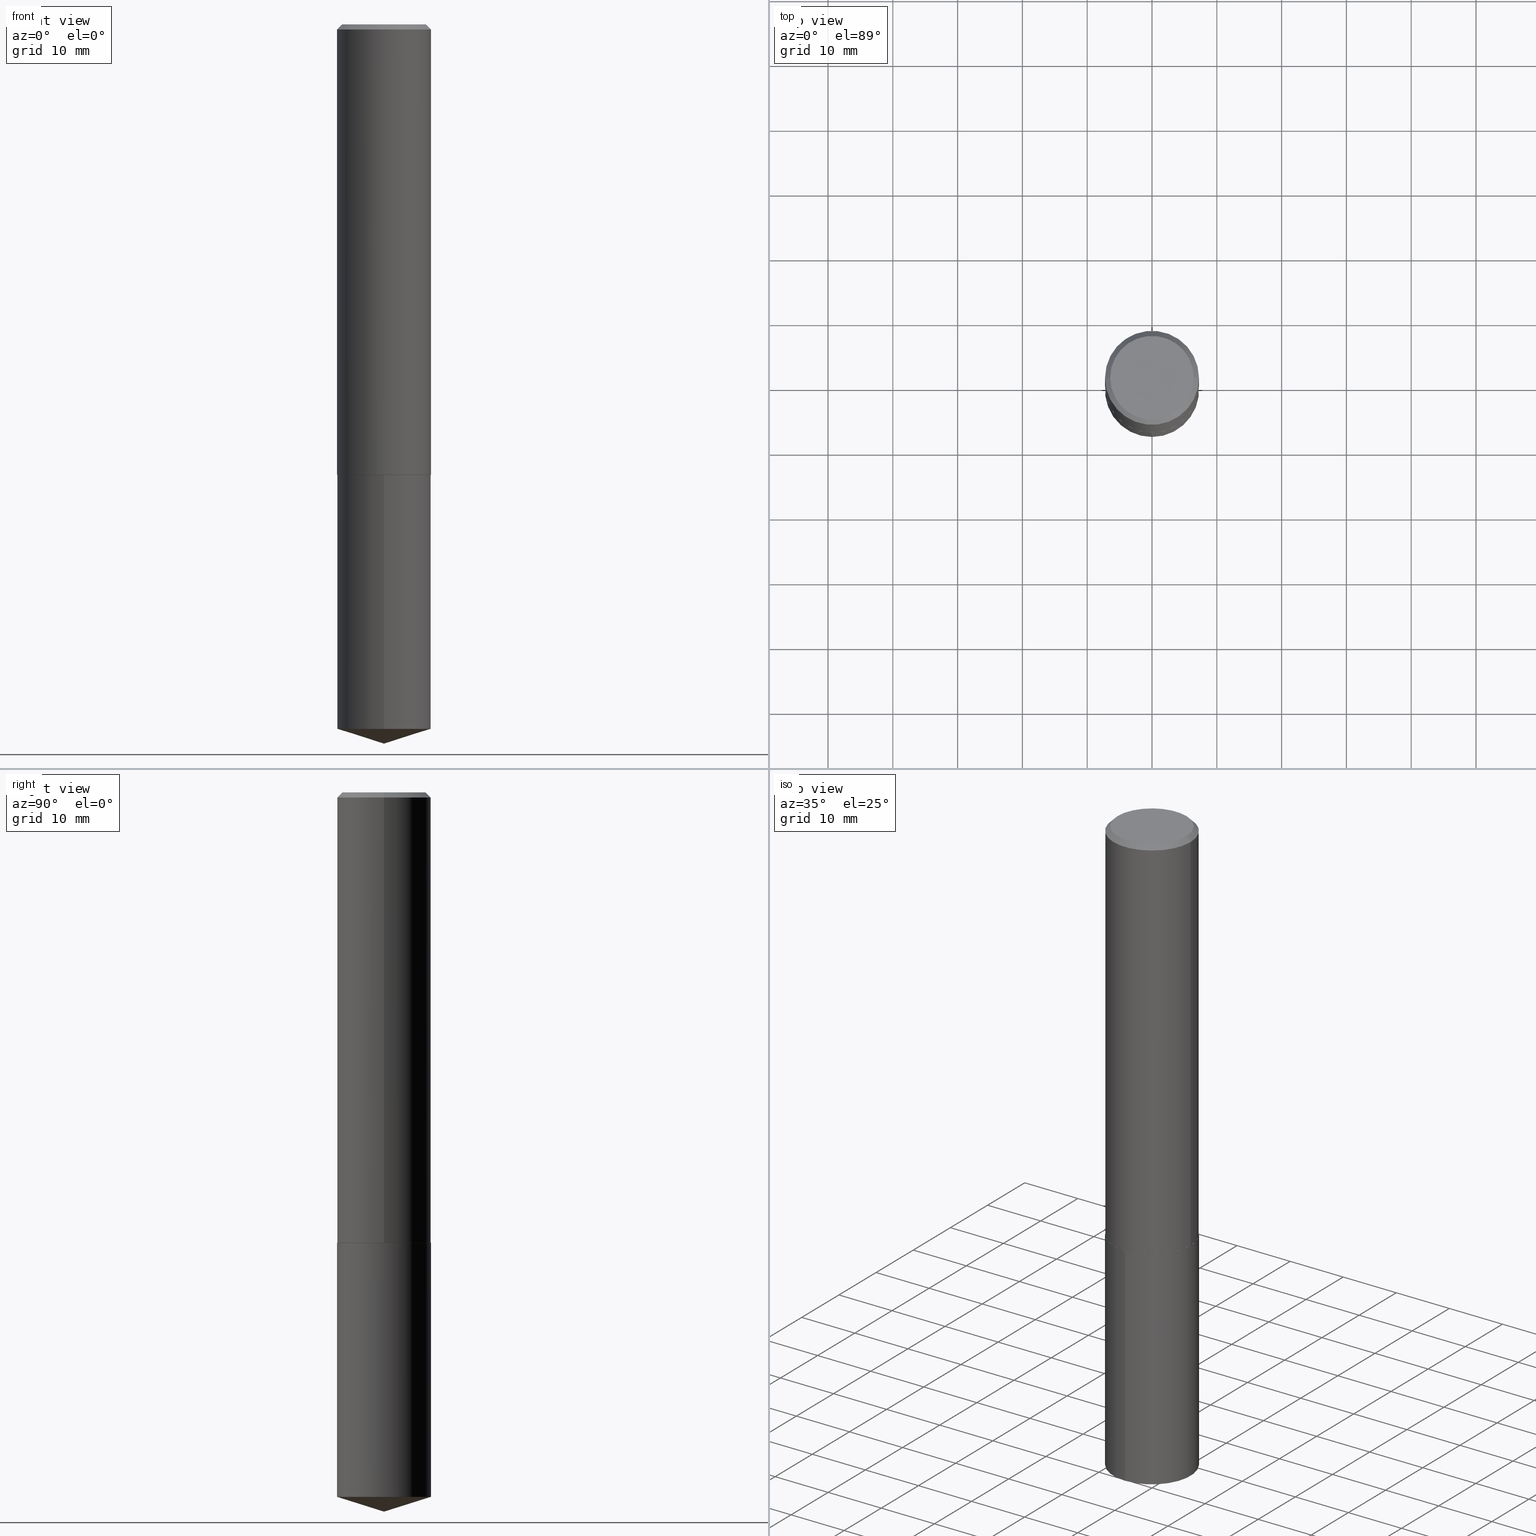
[diagram: canonical four-view strip — front | top / right | iso, engineering-drawing reading convention]
A machine part, canonical four-view strip (front | top / right | iso — engineering-drawing reading convention). The complete STEP part file that produces these views, byte-faithful:
ISO-10303-21;
HEADER;
FILE_DESCRIPTION (( 'STEP AP203' ),
    '1' );
FILE_NAME ('62166.STEP',
    '2024-04-23T07:04:12',
    ( '' ),
    ( '' ),
    'SwSTEP 2.0',
    'SolidWorks 2023',
    '' );
FILE_SCHEMA (( 'CONFIG_CONTROL_DESIGN' ));
ENDSEC;

DATA;
#1 = DIRECTION ( 'NONE',  ( 1.000000000000000000, -6.982962677686265922E-15, 4.876176775795935793E-29 ) ) ;
#2 = APPROVAL ( #219, 'UNSPECIFIED' ) ;
#3 = COORDINATED_UNIVERSAL_TIME_OFFSET ( 5, 0, .BEHIND. ) ;
#4 = ORIENTED_EDGE ( 'NONE', *, *, #221, .T. ) ;
#5 = PERSON_AND_ORGANIZATION_ROLE ( 'creator' ) ;
#6 = CARTESIAN_POINT ( 'NONE',  ( 7.642090019328602662E-31, -1.091087918388490267E-16, -0.03125000000000020817 ) ) ;
#7 = AXIS2_PLACEMENT_3D ( 'NONE', #381, #378, #297 ) ;
#8 = CC_DESIGN_SECURITY_CLASSIFICATION ( #225, ( #150 ) ) ;
#9 = CARTESIAN_POINT ( 'NONE',  ( 0.2854500000000003146, -1.154528134315262530E-14, -2.735799999999999788 ) ) ;
#10 = FACE_OUTER_BOUND ( 'NONE', #206, .T. ) ;
#11 = CYLINDRICAL_SURFACE ( 'NONE', #335, 0.2854500000000001481 ) ;
#12 = AXIS2_PLACEMENT_3D ( 'NONE', #227, #257, #284 ) ;
#13 = CARTESIAN_POINT ( 'NONE',  ( 7.642090019328602662E-31, -1.091087918388490267E-16, -0.03125000000000020817 ) ) ;
#14 = PERSON ( 'UNSPECIFIED', 'UNSPECIFIED', 'UNSPECIFIED', ('UNSPECIFIED'), ('UNSPECIFIED'), ('UNSPECIFIED') ) ;
#15 = LINE ( 'NONE', #259, #46 ) ;
#16 = EDGE_CURVE ( 'NONE', #326, #111, #157, .T. ) ;
#17 = FACE_OUTER_BOUND ( 'NONE', #215, .T. ) ;
#18 = AXIS2_PLACEMENT_3D ( 'NONE', #72, #192, #161 ) ;
#19 = DIRECTION ( 'NONE',  ( -6.982962677686265922E-15, -1.000000000000000000, 3.828128209723963046E-15 ) ) ;
#20 = ORIENTED_EDGE ( 'NONE', *, *, #182, .T. ) ;
#21 = CARTESIAN_POINT ( 'NONE',  ( 0.000000000000000000, 0.000000000000000000, 0.000000000000000000 ) ) ;
#22 = ORIENTED_EDGE ( 'NONE', *, *, #199, .F. ) ;
#23 = LINE ( 'NONE', #200, #224 ) ;
#24 = EDGE_LOOP ( 'NONE', ( #22, #222 ) ) ;
#25 = CC_DESIGN_PERSON_AND_ORGANIZATION_ASSIGNMENT ( #70, #360, ( #225 ) ) ;
#26 = AXIS2_PLACEMENT_3D ( 'NONE', #256, #226, #166 ) ;
#27 = ORGANIZATION ( 'UNSPECIFIED', 'UNSPECIFIED', '' ) ;
#28 = DIRECTION ( 'NONE',  ( -1.000000000000000000, 6.982962677686265922E-15, -4.876176775795935793E-29 ) ) ;
#29 = PERSON_AND_ORGANIZATION_ROLE ( 'design_supplier' ) ;
#30 = VERTEX_POINT ( 'NONE', #212 ) ;
#31 = EDGE_CURVE ( 'NONE', #201, #69, #61, .T. ) ;
#32 = DIRECTION ( 'NONE',  ( -2.438088387897960049E-29, 3.491481338843145188E-15, 1.000000000000000000 ) ) ;
#33 = UNCERTAINTY_MEASURE_WITH_UNIT (LENGTH_MEASURE( 1.000000000000000082E-05 ), #236, 'distance_accuracy_value', 'NONE');
#34 = AXIS2_PLACEMENT_3D ( 'NONE', #131, #337, #281 ) ;
#35 = LOCAL_TIME ( 3, 4, 12.00000000000000000, #3 ) ;
#36 = ORIENTED_EDGE ( 'NONE', *, *, #205, .F. ) ;
#37 = VERTEX_POINT ( 'NONE', #187 ) ;
#38 = CALENDAR_DATE ( 2024, 23, 4 ) ;
#39 = DIRECTION ( 'NONE',  ( 6.982962677686265922E-15, 1.000000000000000000, -3.491943397623643966E-15 ) ) ;
#40 = DIRECTION ( 'NONE',  ( -6.659769872151632089E-15, -0.9537169507482267106, 0.3007057995042733411 ) ) ;
#41 = CIRCLE ( 'NONE', #34, 0.2854499999999999815 ) ;
#42 = DIRECTION ( 'NONE',  ( -2.445146152263225319E-29, 3.491943397623643966E-15, 1.000000000000000000 ) ) ;
#43 = CARTESIAN_POINT ( 'NONE',  ( 6.691536294364390280E-29, -9.553740387476499873E-15, -2.736299999999999955 ) ) ;
#44 = ADVANCED_FACE ( 'NONE', ( #152 ), #88, .F. ) ;
#45 = CARTESIAN_POINT ( 'NONE',  ( 0.2854500000000001481, -1.993286696345545744E-15, 1.391904660650950803E-29 ) ) ;
#46 = VECTOR ( 'NONE', #340, 39.37007874015748143 ) ;
#47 = CC_DESIGN_DATE_AND_TIME_ASSIGNMENT ( #151, #147, ( #225 ) ) ;
#48 = CARTESIAN_POINT ( 'NONE',  ( -0.2849500000000010358, -7.526399634753978988E-15, -2.736299999999999955 ) ) ;
#49 = PRODUCT ( '62166', '62166', '', ( #303 ) ) ;
#50 = DIRECTION ( 'NONE',  ( -2.445468806185136597E-29, 3.491481338843145583E-15, 1.000000000000000000 ) ) ;
#51 = CARTESIAN_POINT ( 'NONE',  ( 6.691536294364390280E-29, -9.553740387476499873E-15, -2.736299999999999955 ) ) ;
#52 = VECTOR ( 'NONE', #330, 39.37007874015748854 ) ;
#53 = LOCAL_TIME ( 3, 4, 12.00000000000000000, #388 ) ;
#54 = DIRECTION ( 'NONE',  ( -0.7071067811859196306, 7.493145998868083818E-15, 0.7071067811871752928 ) ) ;
#55 = CC_DESIGN_DATE_AND_TIME_ASSIGNMENT ( #329, #216, ( #155 ) ) ;
#56 = LINE ( 'NONE', #204, #387 ) ;
#57 = CLOSED_SHELL ( 'NONE', ( #188, #379, #293, #67, #383, #137, #60, #318 ) ) ;
#58 = CARTESIAN_POINT ( 'NONE',  ( 1.068731443945309695E-28, -1.525761317907293388E-14, -4.370099999999999874 ) ) ;
#59 = ORIENTED_EDGE ( 'NONE', *, *, #246, .F. ) ;
#60 = ADVANCED_FACE ( 'NONE', ( #276 ), #248, .T. ) ;
#61 = LINE ( 'NONE', #9, #52 ) ;
#62 = DATE_AND_TIME ( #357, #165 ) ;
#63 = ORIENTED_EDGE ( 'NONE', *, *, #367, .F. ) ;
#64 = AXIS2_PLACEMENT_3D ( 'NONE', #273, #32, #1 ) ;
#65 = CARTESIAN_POINT ( 'NONE',  ( 0.000000000000000000, 0.000000000000000000, 0.000000000000000000 ) ) ;
#66 = CARTESIAN_POINT ( 'NONE',  ( 6.691536294364390280E-29, -9.553740387476499873E-15, -2.736299999999999955 ) ) ;
#67 = ADVANCED_FACE ( 'NONE', ( #278 ), #272, .F. ) ;
#68 = PERSON_AND_ORGANIZATION ( #14, #27 ) ;
#69 = VERTEX_POINT ( 'NONE', #244 ) ;
#70 = PERSON_AND_ORGANIZATION ( #14, #27 ) ;
#71 = ORIENTED_EDGE ( 'NONE', *, *, #356, .T. ) ;
#72 = CARTESIAN_POINT ( 'NONE',  ( 6.690313559961295236E-29, -9.551994646807077580E-15, -2.735799999999999788 ) ) ;
#73 = AXIS2_PLACEMENT_3D ( 'NONE', #266, #174, #28 ) ;
#74 = CC_DESIGN_APPROVAL ( #132, ( #225 ) ) ;
#75 = DIRECTION ( 'NONE',  ( -1.000000000000000000, 6.982962677686265922E-15, 0.000000000000000000 ) ) ;
#76 = CARTESIAN_POINT ( 'NONE',  ( -0.2854500000000003146, -7.523750407579868575E-15, -2.735799999999999788 ) ) ;
#77 = DIRECTION ( 'NONE',  ( 1.000000000000000000, -6.982962677686265922E-15, 4.876176775795936353E-29 ) ) ;
#78 = CIRCLE ( 'NONE', #7, 0.2854500000000003146 ) ;
#79 = CARTESIAN_POINT ( 'NONE',  ( -0.2854500000000001481, 2.028244239227207033E-15, -1.404110021513263625E-29 ) ) ;
#80 = DIRECTION ( 'NONE',  ( -6.982962677686265922E-15, -1.000000000000000000, 3.828128209723963046E-15 ) ) ;
#81 = ORIENTED_EDGE ( 'NONE', *, *, #159, .F. ) ;
#82 = CLOSED_SHELL ( 'NONE', ( #86, #213, #258, #336, #44 ) ) ;
#83 = APPROVAL_PERSON_ORGANIZATION ( #68, #132, #363 ) ;
#84 = DIRECTION ( 'NONE',  ( -2.445468806185136597E-29, 3.491481338843145583E-15, 1.000000000000000000 ) ) ;
#85 = ORIENTED_EDGE ( 'NONE', *, *, #296, .T. ) ;
#86 = ADVANCED_FACE ( 'NONE', ( #362 ), #217, .T. ) ;
#87 = DATE_AND_TIME ( #189, #53 ) ;
#88 = PLANE ( 'NONE',  #347 ) ;
#89 = CC_DESIGN_PERSON_AND_ORGANIZATION_ASSIGNMENT ( #179, #325, ( #49 ) ) ;
#90 = COORDINATED_UNIVERSAL_TIME_OFFSET ( 5, 0, .BEHIND. ) ;
#91 = ORIENTED_EDGE ( 'NONE', *, *, #205, .T. ) ;
#92 = PERSON_AND_ORGANIZATION ( #14, #27 ) ;
#93 = ORIENTED_EDGE ( 'NONE', *, *, #333, .T. ) ;
#94 = CIRCLE ( 'NONE', #143, 0.2541999999999999815 ) ;
#95 = APPROVAL_PERSON_ORGANIZATION ( #301, #374, #269 ) ;
#96 = ORIENTED_EDGE ( 'NONE', *, *, #31, .F. ) ;
#97 = VERTEX_POINT ( 'NONE', #343 ) ;
#98 = DIRECTION ( 'NONE',  ( -2.445146152263225319E-29, 3.491943397623643572E-15, 1.000000000000000000 ) ) ;
#99 = EDGE_CURVE ( 'NONE', #142, #243, #376, .T. ) ;
#100 = DIRECTION ( 'NONE',  ( 1.000000000000000000, -6.982962677686266711E-15, 4.876211886893936302E-29 ) ) ;
#101 = LOCAL_TIME ( 3, 4, 12.00000000000000000, #90 ) ;
#102 = CARTESIAN_POINT ( 'NONE',  ( 2.028244239227311162E-15, 0.2854499999999851600, -4.280097960714495997 ) ) ;
#103 = DIRECTION ( 'NONE',  ( -2.445468806185136597E-29, 3.491481338843145583E-15, 1.000000000000000000 ) ) ;
#104 = DIRECTION ( 'NONE',  ( -2.445468806185136877E-29, 3.491481338843145188E-15, 1.000000000000000000 ) ) ;
#105 = CARTESIAN_POINT ( 'NONE',  ( 0.2854499999999999815, -2.102395488184393662E-15, -0.03125000000000020817 ) ) ;
#106 = CARTESIAN_POINT ( 'NONE',  ( 1.046634793787725127E-28, -1.494459548365832661E-14, -4.280097960714495109 ) ) ;
#107 = EDGE_CURVE ( 'NONE', #111, #268, #41, .T. ) ;
#108 = CARTESIAN_POINT ( 'NONE',  ( -1.993286696345477508E-15, -0.2854500000000095294, -2.736299999999999066 ) ) ;
#109 = VERTEX_POINT ( 'NONE', #48 ) ;
#110 = LOCAL_TIME ( 3, 4, 12.00000000000000000, #121 ) ;
#111 = VERTEX_POINT ( 'NONE', #198 ) ;
#112 = CARTESIAN_POINT ( 'NONE',  ( 1.068553320000552157E-28, -1.526014184195508365E-14, -4.370099999999999874 ) ) ;
#113 = ORIENTED_EDGE ( 'NONE', *, *, #309, .F. ) ;
#114 = APPROVAL_STATUS ( 'not_yet_approved' ) ;
#115 = ORIENTED_EDGE ( 'NONE', *, *, #345, .T. ) ;
#116 = MANIFOLD_SOLID_BREP ( 'Body-Move/Copy2[2]', #57 ) ;
#117 = AXIS2_PLACEMENT_3D ( 'NONE', #13, #164, #75 ) ;
#118 = APPLICATION_PROTOCOL_DEFINITION ( 'international standard', 'config_control_design', 1994, #181 ) ;
#119 = ORIENTED_EDGE ( 'NONE', *, *, #130, .T. ) ;
#120 = ORIENTED_EDGE ( 'NONE', *, *, #31, .T. ) ;
#121 = COORDINATED_UNIVERSAL_TIME_OFFSET ( 5, 0, .BEHIND. ) ;
#122 = EDGE_LOOP ( 'NONE', ( #190, #85, #389 ) ) ;
#123 = CIRCLE ( 'NONE', #191, 0.2854499999999999815 ) ;
#124 = DIRECTION ( 'NONE',  ( 2.445468806185136597E-29, -3.491481338843145583E-15, -1.000000000000000000 ) ) ;
#125 = ORIENTED_EDGE ( 'NONE', *, *, #168, .T. ) ;
#126 = DIRECTION ( 'NONE',  ( -2.445468806185136877E-29, 3.491481338843145188E-15, 1.000000000000000000 ) ) ;
#127 = VECTOR ( 'NONE', #104, 39.37007874015748143 ) ;
#128 = FACE_OUTER_BOUND ( 'NONE', #122, .T. ) ;
#129 = APPROVAL_PERSON_ORGANIZATION ( #386, #2, #298 ) ;
#130 = EDGE_CURVE ( 'NONE', #69, #366, #307, .T. ) ;
#131 = CARTESIAN_POINT ( 'NONE',  ( 1.046634793787725127E-28, -1.494459548365832661E-14, -4.280097960714495109 ) ) ;
#132 = APPROVAL ( #114, 'UNSPECIFIED' ) ;
#133 = CARTESIAN_POINT ( 'NONE',  ( -1.993286696345477508E-15, -0.2854500000000095294, -2.736299999999999066 ) ) ;
#134 = CARTESIAN_POINT ( 'NONE',  ( -4.132873053354873817E-47, 5.900647395337827841E-33, 1.690012582823348576E-18 ) ) ;
#135 =( GEOMETRIC_REPRESENTATION_CONTEXT ( 3 ) GLOBAL_UNCERTAINTY_ASSIGNED_CONTEXT ( ( #33 ) ) GLOBAL_UNIT_ASSIGNED_CONTEXT ( ( #236, #314, #136 ) ) REPRESENTATION_CONTEXT ( 'NONE', 'WORKASPACE' ) );
#136 =( NAMED_UNIT ( * ) SI_UNIT ( $, .STERADIAN. ) SOLID_ANGLE_UNIT ( ) );
#137 = ADVANCED_FACE ( 'NONE', ( #230 ), #11, .T. ) ;
#138 = CARTESIAN_POINT ( 'NONE',  ( 6.690313559961295236E-29, -9.551994646807077580E-15, -2.735799999999999788 ) ) ;
#139 = ORIENTED_EDGE ( 'NONE', *, *, #339, .F. ) ;
#140 = PRODUCT_RELATED_PRODUCT_CATEGORY ( 'detail', '', ( #49 ) ) ;
#141 = DIRECTION ( 'NONE',  ( 1.000000000000000000, -6.982962677686267499E-15, 0.000000000000000000 ) ) ;
#142 = VERTEX_POINT ( 'NONE', #76 ) ;
#143 = AXIS2_PLACEMENT_3D ( 'NONE', #134, #321, #175 ) ;
#144 = AXIS2_PLACEMENT_3D ( 'NONE', #138, #84, #141 ) ;
#145 = FACE_OUTER_BOUND ( 'NONE', #239, .T. ) ;
#146 = ORIENTED_EDGE ( 'NONE', *, *, #296, .F. ) ;
#147 = DATE_TIME_ROLE ( 'classification_date' ) ;
#148 = ORIENTED_EDGE ( 'NONE', *, *, #130, .F. ) ;
#149 = AXIS2_PLACEMENT_3D ( 'NONE', #253, #194, #306 ) ;
#150 = PRODUCT_DEFINITION_FORMATION_WITH_SPECIFIED_SOURCE ( 'ANY', '', #49, .NOT_KNOWN. ) ;
#151 = DATE_AND_TIME ( #249, #101 ) ;
#152 = FACE_OUTER_BOUND ( 'NONE', #359, .T. ) ;
#153 = PERSON_AND_ORGANIZATION ( #14, #27 ) ;
#154 = ORIENTED_EDGE ( 'NONE', *, *, #231, .F. ) ;
#155 = PRODUCT_DEFINITION ( 'UNKNOWN', '', #150, #240 ) ;
#156 = PERSON_AND_ORGANIZATION_ROLE ( 'creator' ) ;
#157 = LINE ( 'NONE', #220, #229 ) ;
#158 = AXIS2_PLACEMENT_3D ( 'NONE', #43, #50, #369 ) ;
#159 = EDGE_CURVE ( 'NONE', #97, #366, #193, .T. ) ;
#160 = DIRECTION ( 'NONE',  ( -1.000000000000000000, 6.982962677686265922E-15, 0.000000000000000000 ) ) ;
#161 = DIRECTION ( 'NONE',  ( 1.000000000000000000, -6.982962677686267499E-15, 0.000000000000000000 ) ) ;
#162 = CARTESIAN_POINT ( 'NONE',  ( 0.2854499999999999815, -2.067437945302732768E-15, -0.03125000000000020817 ) ) ;
#163 = AXIS2_PLACEMENT_3D ( 'NONE', #233, #380, #202 ) ;
#164 = DIRECTION ( 'NONE',  ( 2.445468806185136597E-29, -3.491481338843145583E-15, -1.000000000000000000 ) ) ;
#165 = LOCAL_TIME ( 3, 4, 12.00000000000000000, #238 ) ;
#166 = DIRECTION ( 'NONE',  ( 1.000000000000000000, -6.982962677686265922E-15, 0.000000000000000000 ) ) ;
#167 = CARTESIAN_POINT ( 'NONE',  ( 6.691536294364390280E-29, -9.553740387476499873E-15, -2.736299999999999955 ) ) ;
#168 = EDGE_CURVE ( 'NONE', #243, #366, #287, .T. ) ;
#169 = DIRECTION ( 'NONE',  ( -2.445146152263225319E-29, 3.491943397623643572E-15, 1.000000000000000000 ) ) ;
#170 = ORIENTED_EDGE ( 'NONE', *, *, #333, .F. ) ;
#171 = LINE ( 'NONE', #58, #310 ) ;
#172 = EDGE_LOOP ( 'NONE', ( #346, #364, #299, #59 ) ) ;
#173 = DIMENSIONAL_EXPONENTS ( 1.000000000000000000, 0.000000000000000000, 0.000000000000000000, 0.000000000000000000, 0.000000000000000000, 0.000000000000000000, 0.000000000000000000 ) ;
#174 = DIRECTION ( 'NONE',  ( 2.438088387897960049E-29, -3.491481338843145188E-15, -1.000000000000000000 ) ) ;
#175 = DIRECTION ( 'NONE',  ( 1.000000000000000000, -6.982962677686266711E-15, 4.876211886893936302E-29 ) ) ;
#176 = CONICAL_SURFACE ( 'NONE', #18, 0.2854500000000003146, 0.7853981633965604336 ) ;
#177 = FACE_OUTER_BOUND ( 'NONE', #315, .T. ) ;
#178 = ORIENTED_EDGE ( 'NONE', *, *, #309, .T. ) ;
#179 = PERSON_AND_ORGANIZATION ( #14, #27 ) ;
#180 = ORIENTED_EDGE ( 'NONE', *, *, #246, .T. ) ;
#181 = APPLICATION_CONTEXT ( 'configuration controlled 3d designs of mechanical parts and assemblies' ) ;
#182 = EDGE_CURVE ( 'NONE', #142, #69, #316, .T. ) ;
#183 = EDGE_LOOP ( 'NONE', ( #146, #332, #113 ) ) ;
#184 = DIRECTION ( 'NONE',  ( 1.000000000000000000, 0.000000000000000000, 0.000000000000000000 ) ) ;
#185 = DIRECTION ( 'NONE',  ( -2.445146152263225319E-29, 3.491943397623643572E-15, 1.000000000000000000 ) ) ;
#186 = APPROVAL_DATE_TIME ( #62, #132 ) ;
#187 = CARTESIAN_POINT ( 'NONE',  ( 2.028244239227311162E-15, 0.2854499999999904891, -2.736300000000001287 ) ) ;
#188 = ADVANCED_FACE ( 'NONE', ( #10 ), #260, .T. ) ;
#189 = CALENDAR_DATE ( 2024, 23, 4 ) ;
#190 = ORIENTED_EDGE ( 'NONE', *, *, #16, .F. ) ;
#191 = AXIS2_PLACEMENT_3D ( 'NONE', #106, #262, #80 ) ;
#192 = DIRECTION ( 'NONE',  ( -2.445468806185136597E-29, 3.491481338843145583E-15, 1.000000000000000000 ) ) ;
#193 = LINE ( 'NONE', #162, #271 ) ;
#194 = DIRECTION ( 'NONE',  ( -2.445468806185136597E-29, 3.491481338843145583E-15, 1.000000000000000000 ) ) ;
#195 = AXIS2_PLACEMENT_3D ( 'NONE', #167, #103, #228 ) ;
#196 = DIRECTION ( 'NONE',  ( -2.445468806185136597E-29, 3.491481338843145583E-15, 1.000000000000000000 ) ) ;
#197 = AXIS2_PLACEMENT_3D ( 'NONE', #51, #169, #349 ) ;
#198 = CARTESIAN_POINT ( 'NONE',  ( -1.993286696345440432E-15, -0.2854500000000150250, -4.280097960714494221 ) ) ;
#199 = EDGE_CURVE ( 'NONE', #201, #109, #254, .T. ) ;
#200 = CARTESIAN_POINT ( 'NONE',  ( -0.2854499999999999815, 1.884177904506695461E-15, -0.03125000000000020817 ) ) ;
#201 = VERTEX_POINT ( 'NONE', #279 ) ;
#202 = DIRECTION ( 'NONE',  ( -6.982962677686265922E-15, -1.000000000000000000, 3.828128209723963046E-15 ) ) ;
#203 = CONICAL_SURFACE ( 'NONE', #328, 124.8659371009152892, 1.265363707695892126 ) ;
#204 = CARTESIAN_POINT ( 'NONE',  ( -0.2854500000000003146, -7.523750407579868575E-15, -2.735799999999999788 ) ) ;
#205 = EDGE_CURVE ( 'NONE', #30, #97, #342, .T. ) ;
#206 = EDGE_LOOP ( 'NONE', ( #355, #305, #237, #139 ) ) ;
#207 = LENGTH_MEASURE_WITH_UNIT ( LENGTH_MEASURE( 0.02539999999999999897 ), #384 );
#208 = EDGE_LOOP ( 'NONE', ( #81, #36, #350, #125 ) ) ;
#209 = PLANE ( 'NONE',  #73 ) ;
#210 = AXIS2_PLACEMENT_3D ( 'NONE', #375, #196, #100 ) ;
#211 = APPROVAL_DATE_TIME ( #87, #374 ) ;
#212 = CARTESIAN_POINT ( 'NONE',  ( -0.2541999999999999815, 1.829623508587272093E-15, 1.690012582810744134E-18 ) ) ;
#213 = ADVANCED_FACE ( 'NONE', ( #128 ), #288, .T. ) ;
#214 = APPLICATION_PROTOCOL_DEFINITION ( 'international standard', 'config_control_design', 1994, #354 ) ;
#215 = EDGE_LOOP ( 'NONE', ( #263, #93, #247, #96 ) ) ;
#216 = DATE_TIME_ROLE ( 'creation_date' ) ;
#217 = CYLINDRICAL_SURFACE ( 'NONE', #322, 0.2854499999999999815 ) ;
#218 = VECTOR ( 'NONE', #42, 39.37007874015748143 ) ;
#219 = APPROVAL_STATUS ( 'not_yet_approved' ) ;
#220 = CARTESIAN_POINT ( 'NONE',  ( 1.068553320000552157E-28, -1.526014184195508365E-14, -4.370099999999999874 ) ) ;
#221 = EDGE_CURVE ( 'NONE', #109, #201, #382, .T. ) ;
#222 = ORIENTED_EDGE ( 'NONE', *, *, #221, .F. ) ;
#223 = DIRECTION ( 'NONE',  ( -2.445146152263225319E-29, 3.491943397623643572E-15, 1.000000000000000000 ) ) ;
#224 = VECTOR ( 'NONE', #235, 39.37007874015748143 ) ;
#225 = SECURITY_CLASSIFICATION ( '', '', #245 ) ;
#226 = DIRECTION ( 'NONE',  ( -2.445468806185136597E-29, 3.491481338843145583E-15, 1.000000000000000000 ) ) ;
#227 = CARTESIAN_POINT ( 'NONE',  ( 7.642090019328602662E-31, -1.091087918388490267E-16, -0.03125000000000020817 ) ) ;
#228 = DIRECTION ( 'NONE',  ( 1.000000000000000000, -6.982962677686265922E-15, 0.000000000000000000 ) ) ;
#229 = VECTOR ( 'NONE', #40, 39.37007874015748854 ) ;
#230 = FACE_OUTER_BOUND ( 'NONE', #234, .T. ) ;
#231 = EDGE_CURVE ( 'NONE', #366, #243, #358, .T. ) ;
#232 = DIRECTION ( 'NONE',  ( 1.000000000000000000, -6.982962677686265922E-15, 4.876176775795936353E-29 ) ) ;
#233 = CARTESIAN_POINT ( 'NONE',  ( 6.691536294364390280E-29, -9.553740387476499873E-15, -2.736299999999999955 ) ) ;
#234 = EDGE_LOOP ( 'NONE', ( #250, #20, #119, #300 ) ) ;
#235 = DIRECTION ( 'NONE',  ( -0.7071067811865452413, 2.468850131082233000E-15, -0.7071067811865497932 ) ) ;
#236 =( CONVERSION_BASED_UNIT ( 'INCH', #207 ) LENGTH_UNIT ( ) NAMED_UNIT ( #173 ) );
#237 = ORIENTED_EDGE ( 'NONE', *, *, #231, .T. ) ;
#238 = COORDINATED_UNIVERSAL_TIME_OFFSET ( 5, 0, .BEHIND. ) ;
#239 = EDGE_LOOP ( 'NONE', ( #170, #4, #120, #361 ) ) ;
#240 = DESIGN_CONTEXT ( 'detailed design', #354, 'design' ) ;
#241 = AXIS2_PLACEMENT_3D ( 'NONE', #6, #124, #160 ) ;
#242 = DATE_AND_TIME ( #38, #35 ) ;
#243 = VERTEX_POINT ( 'NONE', #286 ) ;
#244 = CARTESIAN_POINT ( 'NONE',  ( 0.2854500000000003146, -1.154528134315262530E-14, -2.735799999999999788 ) ) ;
#245 = SECURITY_CLASSIFICATION_LEVEL ( 'unclassified' ) ;
#246 = EDGE_CURVE ( 'NONE', #111, #353, #373, .T. ) ;
#247 = ORIENTED_EDGE ( 'NONE', *, *, #352, .F. ) ;
#248 = CONICAL_SURFACE ( 'NONE', #241, 0.2854499999999999815, 0.7853981633974450594 ) ;
#249 = CALENDAR_DATE ( 2024, 23, 4 ) ;
#250 = ORIENTED_EDGE ( 'NONE', *, *, #99, .F. ) ;
#251 = DIRECTION ( 'NONE',  ( -6.982962677686265133E-15, -1.000000000000000000, 3.500519750498698121E-15 ) ) ;
#252 = ADVANCED_BREP_SHAPE_REPRESENTATION ( '62166', ( #368, #116, #265 ), #135 ) ;
#253 = CARTESIAN_POINT ( 'NONE',  ( 6.690313559961295236E-29, -9.551994646807077580E-15, -2.735799999999999788 ) ) ;
#254 = CIRCLE ( 'NONE', #158, 0.2849500000000010358 ) ;
#255 = CC_DESIGN_APPROVAL ( #374, ( #150 ) ) ;
#256 = CARTESIAN_POINT ( 'NONE',  ( 7.642090019328602662E-31, -1.091087918388490267E-16, -0.03125000000000020817 ) ) ;
#257 = DIRECTION ( 'NONE',  ( -2.445468806185136597E-29, 3.491481338843145583E-15, 1.000000000000000000 ) ) ;
#258 = ADVANCED_FACE ( 'NONE', ( #341 ), #203, .T. ) ;
#259 = CARTESIAN_POINT ( 'NONE',  ( 2.028244239227272508E-15, 0.2854499999999904336, -2.736300000000001287 ) ) ;
#260 = CONICAL_SURFACE ( 'NONE', #117, 0.2854499999999999815, 0.7853981633974450594 ) ;
#261 = DIRECTION ( 'NONE',  ( 6.776566513254257349E-15, 0.9537169507482289310, 0.3007057995042667353 ) ) ;
#262 = DIRECTION ( 'NONE',  ( -2.445146152263225319E-29, 3.491943397623643572E-15, 1.000000000000000000 ) ) ;
#263 = ORIENTED_EDGE ( 'NONE', *, *, #199, .T. ) ;
#264 = CYLINDRICAL_SURFACE ( 'NONE', #163, 0.2854499999999999815 ) ;
#265 = AXIS2_PLACEMENT_3D ( 'NONE', #65, #267, #184 ) ;
#266 = CARTESIAN_POINT ( 'NONE',  ( -2.066436526677436908E-47, 2.950323697668913920E-33, 8.450062914116742878E-19 ) ) ;
#267 = DIRECTION ( 'NONE',  ( 0.000000000000000000, 0.000000000000000000, 1.000000000000000000 ) ) ;
#268 = VERTEX_POINT ( 'NONE', #102 ) ;
#269 = APPROVAL_ROLE ( '' ) ;
#270 = ORIENTED_EDGE ( 'NONE', *, *, #352, .T. ) ;
#271 = VECTOR ( 'NONE', #313, 39.37007874015748143 ) ;
#272 = PLANE ( 'NONE',  #64 ) ;
#273 = CARTESIAN_POINT ( 'NONE',  ( 6.691536294364390280E-29, -9.553740387476499873E-15, -2.736299999999999955 ) ) ;
#274 = CC_DESIGN_PERSON_AND_ORGANIZATION_ASSIGNMENT ( #153, #29, ( #150 ) ) ;
#275 = APPROVAL_STATUS ( 'not_yet_approved' ) ;
#276 = FACE_OUTER_BOUND ( 'NONE', #208, .T. ) ;
#277 = CIRCLE ( 'NONE', #372, 0.2854499999999999815 ) ;
#278 = FACE_OUTER_BOUND ( 'NONE', #24, .T. ) ;
#279 = CARTESIAN_POINT ( 'NONE',  ( 0.2849500000000010358, -1.154353560248320932E-14, -2.736299999999999955 ) ) ;
#280 = EDGE_CURVE ( 'NONE', #268, #37, #15, .T. ) ;
#281 = DIRECTION ( 'NONE',  ( -6.982962677686265922E-15, -1.000000000000000000, 3.828128209723963046E-15 ) ) ;
#282 = VECTOR ( 'NONE', #126, 39.37007874015748143 ) ;
#283 = CIRCLE ( 'NONE', #197, 0.2854499999999999815 ) ;
#284 = DIRECTION ( 'NONE',  ( 1.000000000000000000, -6.982962677686265922E-15, 0.000000000000000000 ) ) ;
#285 = CARTESIAN_POINT ( 'NONE',  ( -8.557918046786424282E-28, 1.222192090101018807E-13, 34.99997874015748067 ) ) ;
#286 = CARTESIAN_POINT ( 'NONE',  ( -0.2854499999999999815, -2.802307480095755519E-15, -0.03125000000000020817 ) ) ;
#287 = CIRCLE ( 'NONE', #12, 0.2854499999999999815 ) ;
#288 = CONICAL_SURFACE ( 'NONE', #371, 124.8659371009152892, 1.265363707695892126 ) ;
#289 = DIRECTION ( 'NONE',  ( -2.445146152263225319E-29, 3.491943397623643572E-15, 1.000000000000000000 ) ) ;
#290 = ORIENTED_EDGE ( 'NONE', *, *, #367, .T. ) ;
#291 = CARTESIAN_POINT ( 'NONE',  ( 6.691536294364390280E-29, -9.553740387476499873E-15, -2.736299999999999955 ) ) ;
#292 = EDGE_LOOP ( 'NONE', ( #320, #178, #180, #63 ) ) ;
#293 = ADVANCED_FACE ( 'NONE', ( #17 ), #176, .T. ) ;
#294 = FACE_OUTER_BOUND ( 'NONE', #292, .T. ) ;
#295 = CYLINDRICAL_SURFACE ( 'NONE', #348, 0.2854500000000001481 ) ;
#296 = EDGE_CURVE ( 'NONE', #326, #268, #171, .T. ) ;
#297 = DIRECTION ( 'NONE',  ( 1.000000000000000000, -6.982962677686267499E-15, 0.000000000000000000 ) ) ;
#298 = APPROVAL_ROLE ( '' ) ;
#299 = ORIENTED_EDGE ( 'NONE', *, *, #356, .F. ) ;
#300 = ORIENTED_EDGE ( 'NONE', *, *, #168, .F. ) ;
#301 = PERSON_AND_ORGANIZATION ( #14, #27 ) ;
#302 = DIRECTION ( 'NONE',  ( -6.982962677686265922E-15, -1.000000000000000000, 3.828128209723963046E-15 ) ) ;
#303 = MECHANICAL_CONTEXT ( 'NONE', #181, 'mechanical' ) ;
#304 = DIRECTION ( 'NONE',  ( 2.445146152263224478E-29, -3.491943397623643966E-15, -1.000000000000000000 ) ) ;
#305 = ORIENTED_EDGE ( 'NONE', *, *, #159, .T. ) ;
#306 = DIRECTION ( 'NONE',  ( 1.000000000000000000, -6.982962677686267499E-15, 0.000000000000000000 ) ) ;
#307 = LINE ( 'NONE', #45, #127 ) ;
#308 = CARTESIAN_POINT ( 'NONE',  ( 0.000000000000000000, 0.000000000000000000, 0.000000000000000000 ) ) ;
#309 = EDGE_CURVE ( 'NONE', #268, #111, #123, .T. ) ;
#310 = VECTOR ( 'NONE', #261, 39.37007874015748143 ) ;
#311 = CARTESIAN_POINT ( 'NONE',  ( -8.557918046786424282E-28, 1.222192090101018807E-13, 34.99997874015748067 ) ) ;
#312 = CC_DESIGN_PERSON_AND_ORGANIZATION_ASSIGNMENT ( #92, #156, ( #155 ) ) ;
#313 = DIRECTION ( 'NONE',  ( 0.7071067811865452413, -7.319954787623248157E-15, -0.7071067811865497932 ) ) ;
#314 =( NAMED_UNIT ( * ) PLANE_ANGLE_UNIT ( ) SI_UNIT ( $, .RADIAN. ) );
#315 = EDGE_LOOP ( 'NONE', ( #91, #115 ) ) ;
#316 = CIRCLE ( 'NONE', #149, 0.2854500000000003146 ) ;
#317 = CC_DESIGN_APPROVAL ( #2, ( #155 ) ) ;
#318 = ADVANCED_FACE ( 'NONE', ( #177 ), #209, .F. ) ;
#319 = CC_DESIGN_PERSON_AND_ORGANIZATION_ASSIGNMENT ( #323, #5, ( #150 ) ) ;
#320 = ORIENTED_EDGE ( 'NONE', *, *, #280, .F. ) ;
#321 = DIRECTION ( 'NONE',  ( -2.445468806185136597E-29, 3.491481338843145583E-15, 1.000000000000000000 ) ) ;
#322 = AXIS2_PLACEMENT_3D ( 'NONE', #66, #185, #302 ) ;
#323 = PERSON_AND_ORGANIZATION ( #14, #27 ) ;
#324 = EDGE_LOOP ( 'NONE', ( #270, #385, #154, #148 ) ) ;
#325 = PERSON_AND_ORGANIZATION_ROLE ( 'design_owner' ) ;
#326 = VERTEX_POINT ( 'NONE', #112 ) ;
#327 = CARTESIAN_POINT ( 'NONE',  ( 6.691536294364390280E-29, -9.553740387476499873E-15, -2.736299999999999955 ) ) ;
#328 = AXIS2_PLACEMENT_3D ( 'NONE', #285, #223, #334 ) ;
#329 = DATE_AND_TIME ( #331, #110 ) ;
#330 = DIRECTION ( 'NONE',  ( 0.7071067811859196306, -2.468850131075680327E-15, 0.7071067811871752928 ) ) ;
#331 = CALENDAR_DATE ( 2024, 23, 4 ) ;
#332 = ORIENTED_EDGE ( 'NONE', *, *, #16, .T. ) ;
#333 = EDGE_CURVE ( 'NONE', #109, #142, #56, .T. ) ;
#334 = DIRECTION ( 'NONE',  ( -6.982962677686265133E-15, -1.000000000000000000, 3.500519750498698121E-15 ) ) ;
#335 = AXIS2_PLACEMENT_3D ( 'NONE', #308, #370, #77 ) ;
#336 = ADVANCED_FACE ( 'NONE', ( #294 ), #264, .T. ) ;
#337 = DIRECTION ( 'NONE',  ( -2.445146152263225319E-29, 3.491943397623643572E-15, 1.000000000000000000 ) ) ;
#338 = PRODUCT_DEFINITION_SHAPE ( 'NONE', 'NONE',  #155 ) ;
#339 = EDGE_CURVE ( 'NONE', #30, #243, #23, .T. ) ;
#340 = DIRECTION ( 'NONE',  ( -2.445146152263225319E-29, 3.491943397623643966E-15, 1.000000000000000000 ) ) ;
#341 = FACE_OUTER_BOUND ( 'NONE', #183, .T. ) ;
#342 = CIRCLE ( 'NONE', #210, 0.2541999999999999815 ) ;
#343 = CARTESIAN_POINT ( 'NONE',  ( 0.2541999999999999815, -1.905688268168128037E-15, 1.690012582836218602E-18 ) ) ;
#344 = FACE_OUTER_BOUND ( 'NONE', #324, .T. ) ;
#345 = EDGE_CURVE ( 'NONE', #97, #30, #94, .T. ) ;
#346 = ORIENTED_EDGE ( 'NONE', *, *, #107, .T. ) ;
#347 = AXIS2_PLACEMENT_3D ( 'NONE', #327, #304, #39 ) ;
#348 = AXIS2_PLACEMENT_3D ( 'NONE', #21, #351, #232 ) ;
#349 = DIRECTION ( 'NONE',  ( -6.982962677686265922E-15, -1.000000000000000000, 3.828128209723963046E-15 ) ) ;
#350 = ORIENTED_EDGE ( 'NONE', *, *, #339, .T. ) ;
#351 = DIRECTION ( 'NONE',  ( -2.445468806185136597E-29, 3.491481338843145583E-15, 1.000000000000000000 ) ) ;
#352 = EDGE_CURVE ( 'NONE', #69, #142, #78, .T. ) ;
#353 = VERTEX_POINT ( 'NONE', #108 ) ;
#354 = APPLICATION_CONTEXT ( 'configuration controlled 3d designs of mechanical parts and assemblies' ) ;
#355 = ORIENTED_EDGE ( 'NONE', *, *, #345, .F. ) ;
#356 = EDGE_CURVE ( 'NONE', #353, #37, #283, .T. ) ;
#357 = CALENDAR_DATE ( 2024, 23, 4 ) ;
#358 = CIRCLE ( 'NONE', #26, 0.2854499999999999815 ) ;
#359 = EDGE_LOOP ( 'NONE', ( #71, #290 ) ) ;
#360 = PERSON_AND_ORGANIZATION_ROLE ( 'classification_officer' ) ;
#361 = ORIENTED_EDGE ( 'NONE', *, *, #182, .F. ) ;
#362 = FACE_OUTER_BOUND ( 'NONE', #172, .T. ) ;
#363 = APPROVAL_ROLE ( '' ) ;
#364 = ORIENTED_EDGE ( 'NONE', *, *, #280, .T. ) ;
#365 = SHAPE_DEFINITION_REPRESENTATION ( #338, #252 ) ;
#366 = VERTEX_POINT ( 'NONE', #105 ) ;
#367 = EDGE_CURVE ( 'NONE', #37, #353, #277, .T. ) ;
#368 = MANIFOLD_SOLID_BREP ( 'Body-Move/Copy2[1]', #82 ) ;
#369 = DIRECTION ( 'NONE',  ( 1.000000000000000000, -6.982962677686265922E-15, 0.000000000000000000 ) ) ;
#370 = DIRECTION ( 'NONE',  ( -2.445468806185136597E-29, 3.491481338843145583E-15, 1.000000000000000000 ) ) ;
#371 = AXIS2_PLACEMENT_3D ( 'NONE', #311, #98, #251 ) ;
#372 = AXIS2_PLACEMENT_3D ( 'NONE', #291, #289, #19 ) ;
#373 = LINE ( 'NONE', #133, #218 ) ;
#374 = APPROVAL ( #275, 'UNSPECIFIED' ) ;
#375 = CARTESIAN_POINT ( 'NONE',  ( -4.132873053354873817E-47, 5.900647395337827841E-33, 1.690012582823348576E-18 ) ) ;
#376 = LINE ( 'NONE', #79, #282 ) ;
#377 = CONICAL_SURFACE ( 'NONE', #144, 0.2854500000000003146, 0.7853981633965604336 ) ;
#378 = DIRECTION ( 'NONE',  ( -2.445468806185136597E-29, 3.491481338843145583E-15, 1.000000000000000000 ) ) ;
#379 = ADVANCED_FACE ( 'NONE', ( #344 ), #295, .T. ) ;
#380 = DIRECTION ( 'NONE',  ( -2.445146152263225319E-29, 3.491943397623643572E-15, 1.000000000000000000 ) ) ;
#381 = CARTESIAN_POINT ( 'NONE',  ( 6.690313559961295236E-29, -9.551994646807077580E-15, -2.735799999999999788 ) ) ;
#382 = CIRCLE ( 'NONE', #195, 0.2849500000000010358 ) ;
#383 = ADVANCED_FACE ( 'NONE', ( #145 ), #377, .T. ) ;
#384 =( LENGTH_UNIT ( ) NAMED_UNIT ( * ) SI_UNIT ( $, .METRE. ) );
#385 = ORIENTED_EDGE ( 'NONE', *, *, #99, .T. ) ;
#386 = PERSON_AND_ORGANIZATION ( #14, #27 ) ;
#387 = VECTOR ( 'NONE', #54, 39.37007874015748854 ) ;
#388 = COORDINATED_UNIVERSAL_TIME_OFFSET ( 5, 0, .BEHIND. ) ;
#389 = ORIENTED_EDGE ( 'NONE', *, *, #107, .F. ) ;
#390 = APPROVAL_DATE_TIME ( #242, #2 ) ;
ENDSEC;
END-ISO-10303-21;
